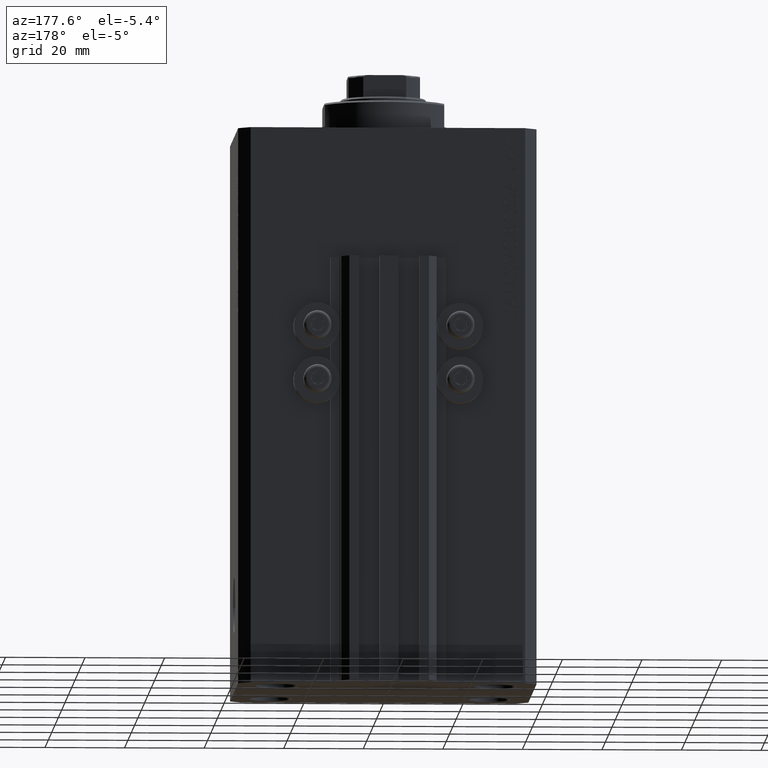
[diagram: clean part render]
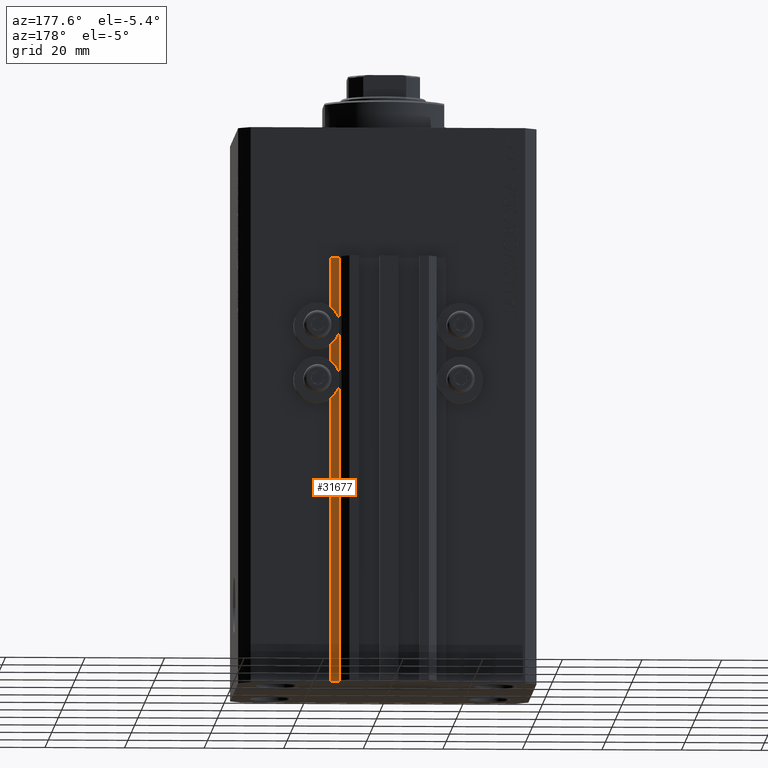
[diagram: same view with one face highlighted and labeled with its STEP entity id]
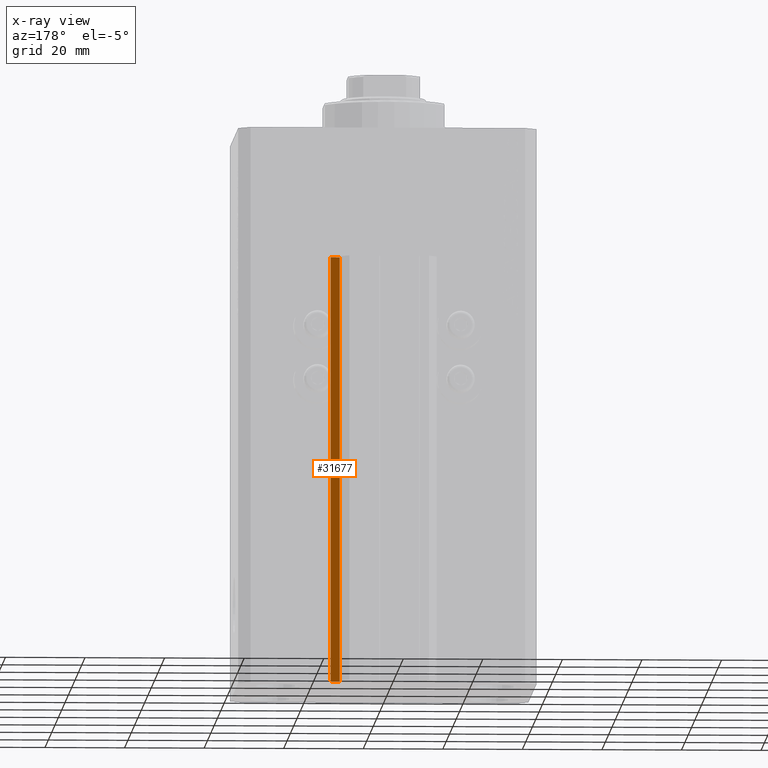
[diagram: x-ray of the same camera — body ghosted, the highlighted face saturated]
A machine part, auxiliary view. The second image highlights one B-rep face of the part: STEP entity #31677.
The next image is the same camera in x-ray: the body ghosted, the highlighted face saturated — about 0% of this face is hidden behind the body in this view.
In plain terms, the highlighted planar face has unit normal (0, 1, 0).
Its self-contained STEP definition (entity closure, byte-faithful):
#2307 = VERTEX_POINT ( 'NONE', #18814 ) ;
#2401 = CARTESIAN_POINT ( 'NONE',  ( 14.49999999999999645, 30.00000000000002487, -140.0000000000000000 ) ) ;
#2997 = EDGE_CURVE ( 'NONE', #27679, #2307, #25549, .T. ) ;
#4043 = CARTESIAN_POINT ( 'NONE',  ( 14.49999999999999645, 30.00000000000002487, -140.0000000000000000 ) ) ;
#4364 = CARTESIAN_POINT ( 'NONE',  ( 14.49999999999999645, 30.00000000000002487, -140.0000000000000000 ) ) ;
#6166 = ORIENTED_EDGE ( 'NONE', *, *, #33021, .F. ) ;
#7024 = ORIENTED_EDGE ( 'NONE', *, *, #7500, .T. ) ;
#7500 = EDGE_CURVE ( 'NONE', #24547, #27679, #7696, .T. ) ;
#7696 = LINE ( 'NONE', #4364, #26573 ) ;
#13393 = PLANE ( 'NONE',  #17781 ) ;
#13479 = ORIENTED_EDGE ( 'NONE', *, *, #2997, .T. ) ;
#14324 = VERTEX_POINT ( 'NONE', #34969 ) ;
#17781 = AXIS2_PLACEMENT_3D ( 'NONE', #2401, #45390, #38247 ) ;
#18402 = DIRECTION ( 'NONE',  ( 0.000000000000000000, 0.000000000000000000, 1.000000000000000000 ) ) ;
#18814 = CARTESIAN_POINT ( 'NONE',  ( 12.20000000000000107, 30.00000000000002487, -33.00000000000000000 ) ) ;
#20372 = DIRECTION ( 'NONE',  ( -1.000000000000000000, 0.000000000000000000, 0.000000000000000000 ) ) ;
#20845 = CARTESIAN_POINT ( 'NONE',  ( 14.49999999999999645, 30.00000000000002487, -33.00000000000000000 ) ) ;
#21474 = LINE ( 'NONE', #36032, #37623 ) ;
#24416 = LINE ( 'NONE', #20845, #35209 ) ;
#24547 = VERTEX_POINT ( 'NONE', #4043 ) ;
#25549 = LINE ( 'NONE', #36544, #35585 ) ;
#26573 = VECTOR ( 'NONE', #29914, 1000.000000000000000 ) ;
#27263 = FACE_OUTER_BOUND ( 'NONE', #41847, .T. ) ;
#27679 = VERTEX_POINT ( 'NONE', #37804 ) ;
#27843 = EDGE_CURVE ( 'NONE', #14324, #2307, #24416, .T. ) ;
#29914 = DIRECTION ( 'NONE',  ( -1.000000000000000000, 0.000000000000000000, 0.000000000000000000 ) ) ;
#31677 = ADVANCED_FACE ( 'NONE', ( #27263 ), #13393, .T. ) ;
#32698 = DIRECTION ( 'NONE',  ( 0.000000000000000000, 0.000000000000000000, 1.000000000000000000 ) ) ;
#33021 = EDGE_CURVE ( 'NONE', #24547, #14324, #21474, .T. ) ;
#34969 = CARTESIAN_POINT ( 'NONE',  ( 14.49999999999999645, 30.00000000000002487, -33.00000000000000000 ) ) ;
#35209 = VECTOR ( 'NONE', #20372, 1000.000000000000000 ) ;
#35585 = VECTOR ( 'NONE', #18402, 1000.000000000000000 ) ;
#36032 = CARTESIAN_POINT ( 'NONE',  ( 14.49999999999999645, 30.00000000000002487, -140.0000000000000000 ) ) ;
#36544 = CARTESIAN_POINT ( 'NONE',  ( 12.20000000000000107, 30.00000000000002487, -140.0000000000000000 ) ) ;
#37623 = VECTOR ( 'NONE', #32698, 1000.000000000000000 ) ;
#37804 = CARTESIAN_POINT ( 'NONE',  ( 12.20000000000000107, 30.00000000000002487, -140.0000000000000000 ) ) ;
#38247 = DIRECTION ( 'NONE',  ( 0.000000000000000000, 0.000000000000000000, 1.000000000000000000 ) ) ;
#39337 = ORIENTED_EDGE ( 'NONE', *, *, #27843, .F. ) ;
#41847 = EDGE_LOOP ( 'NONE', ( #39337, #6166, #7024, #13479 ) ) ;
#45390 = DIRECTION ( 'NONE',  ( 0.000000000000000000, 1.000000000000000000, -0.000000000000000000 ) ) ;